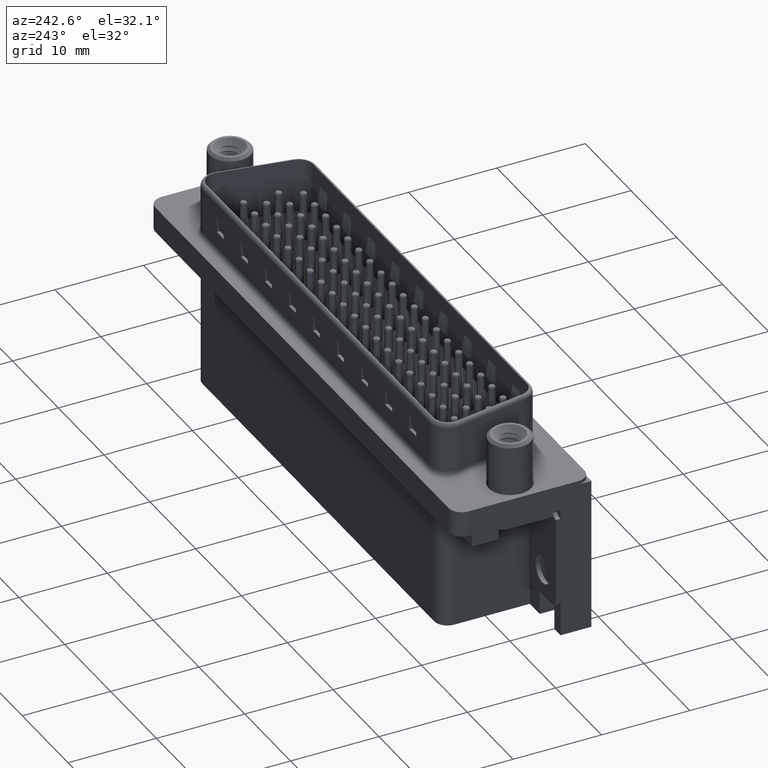
[diagram: clean part render]
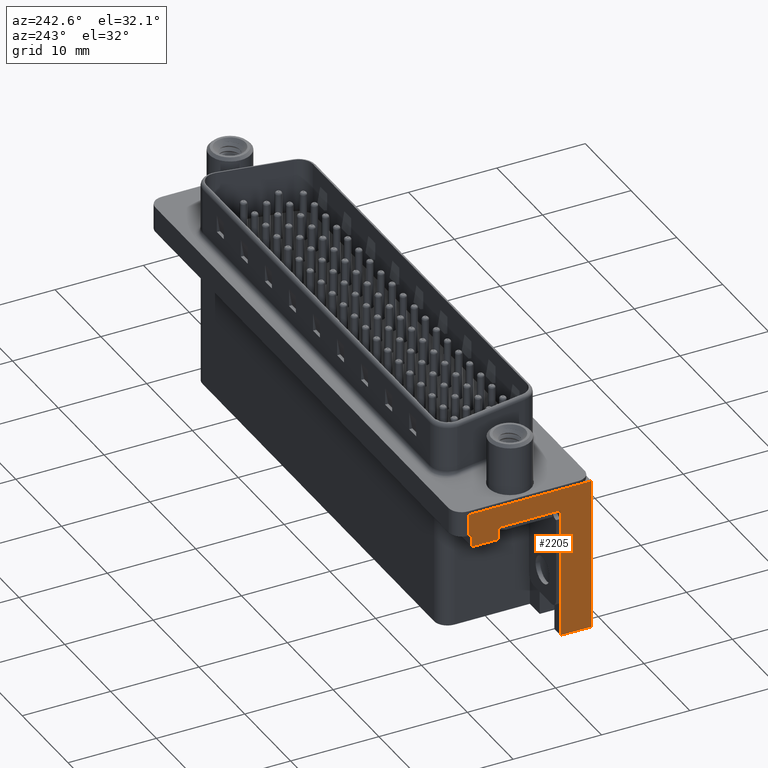
[diagram: same view with one face highlighted and labeled with its STEP entity id]
A machine part, auxiliary view. The second image highlights one B-rep face of the part: STEP entity #2205.
In plain terms, the highlighted planar face has unit normal (-1, 0, 0).
Its self-contained STEP definition (entity closure, byte-faithful):
#291 = VERTEX_POINT ( 'NONE', #10886 ) ;
#375 = ORIENTED_EDGE ( 'NONE', *, *, #37123, .F. ) ;
#747 = EDGE_CURVE ( 'NONE', #36629, #10007, #1350, .T. ) ;
#1199 = VECTOR ( 'NONE', #21009, 1000.000000000000000 ) ;
#1272 = VECTOR ( 'NONE', #30807, 1000.000000000000000 ) ;
#1350 = LINE ( 'NONE', #21792, #1199 ) ;
#1440 = LINE ( 'NONE', #8615, #2416 ) ;
#2205 = ADVANCED_FACE ( 'NONE', ( #19860 ), #10708, .T. ) ;
#2416 = VECTOR ( 'NONE', #21542, 1000.000000000000000 ) ;
#5245 = CARTESIAN_POINT ( 'NONE',  ( -2.949999999999992200, -4.199999999999999300, -17.30000000000000100 ) ) ;
#5376 = VECTOR ( 'NONE', #33175, 1000.000000000000000 ) ;
#5684 = VECTOR ( 'NONE', #31481, 1000.000000000000000 ) ;
#6172 = CARTESIAN_POINT ( 'NONE',  ( -2.949999999999998000, -7.699999999999999300, -17.30000000000000100 ) ) ;
#6846 = VECTOR ( 'NONE', #17628, 1000.000000000000000 ) ;
#7635 = ORIENTED_EDGE ( 'NONE', *, *, #18947, .T. ) ;
#8615 = CARTESIAN_POINT ( 'NONE',  ( -2.949999999999998000, -7.699999999999999300, 0.0000000000000000000 ) ) ;
#8821 = CARTESIAN_POINT ( 'NONE',  ( -2.949999999999998000, -7.699999999999999300, -2.500000000000000000 ) ) ;
#9082 = CARTESIAN_POINT ( 'NONE',  ( -2.949999999999992200, 2.849999999999993400, -2.500000000000000000 ) ) ;
#9203 = CARTESIAN_POINT ( 'NONE',  ( -2.949999999999992200, 2.849999999999993400, -3.899999999999999900 ) ) ;
#9453 = CARTESIAN_POINT ( 'NONE',  ( -2.949999999999998000, 5.849999999999993400, -2.500000000000000000 ) ) ;
#10007 = VERTEX_POINT ( 'NONE', #26752 ) ;
#10708 = PLANE ( 'NONE',  #13207 ) ;
#10886 = CARTESIAN_POINT ( 'NONE',  ( -2.949999999999992200, -4.199999999999999300, -17.30000000000000100 ) ) ;
#11127 = VECTOR ( 'NONE', #12724, 1000.000000000000000 ) ;
#11157 = EDGE_CURVE ( 'NONE', #25882, #36598, #19211, .T. ) ;
#11956 = EDGE_CURVE ( 'NONE', #25882, #18572, #35653, .T. ) ;
#12092 = DIRECTION ( 'NONE',  ( -0.0000000000000000000, -1.000000000000000000, -0.0000000000000000000 ) ) ;
#12420 = VERTEX_POINT ( 'NONE', #14635 ) ;
#12724 = DIRECTION ( 'NONE',  ( -0.0000000000000000000, 1.000000000000000000, -0.0000000000000000000 ) ) ;
#13207 = AXIS2_PLACEMENT_3D ( 'NONE', #16108, #16148, #16656 ) ;
#13543 = EDGE_CURVE ( 'NONE', #36629, #291, #33079, .T. ) ;
#14439 = ORIENTED_EDGE ( 'NONE', *, *, #36335, .T. ) ;
#14635 = CARTESIAN_POINT ( 'NONE',  ( -2.949999999999997100, 6.200000000000002800, -2.500000000000000000 ) ) ;
#15672 = EDGE_CURVE ( 'NONE', #291, #20831, #32330, .T. ) ;
#16108 = CARTESIAN_POINT ( 'NONE',  ( -2.949999999999998000, -7.699999999999999300, -2.500000000000000000 ) ) ;
#16148 = DIRECTION ( 'NONE',  ( -1.000000000000000000, 0.0000000000000000000, 0.0000000000000000000 ) ) ;
#16656 = DIRECTION ( 'NONE',  ( 0.0000000000000000000, 0.0000000000000000000, 1.000000000000000000 ) ) ;
#17088 = CARTESIAN_POINT ( 'NONE',  ( -2.949999999999998000, -7.699999999999999300, -2.500000000000000000 ) ) ;
#17628 = DIRECTION ( 'NONE',  ( 0.0000000000000000000, 0.0000000000000000000, 1.000000000000000000 ) ) ;
#17806 = EDGE_CURVE ( 'NONE', #18572, #31695, #31182, .T. ) ;
#18092 = ORIENTED_EDGE ( 'NONE', *, *, #11157, .T. ) ;
#18572 = VERTEX_POINT ( 'NONE', #38822 ) ;
#18947 = EDGE_CURVE ( 'NONE', #36598, #20831, #23642, .T. ) ;
#19211 = LINE ( 'NONE', #27619, #1272 ) ;
#19500 = EDGE_LOOP ( 'NONE', ( #375, #28597, #14439, #24136, #25560, #18092, #7635, #31452, #24146, #31700 ) ) ;
#19860 = FACE_OUTER_BOUND ( 'NONE', #19500, .T. ) ;
#20831 = VERTEX_POINT ( 'NONE', #29452 ) ;
#20847 = VECTOR ( 'NONE', #28449, 1000.000000000000000 ) ;
#21009 = DIRECTION ( 'NONE',  ( 0.0000000000000000000, 0.0000000000000000000, 1.000000000000000000 ) ) ;
#21542 = DIRECTION ( 'NONE',  ( -0.0000000000000000000, -1.000000000000000000, -0.0000000000000000000 ) ) ;
#21792 = CARTESIAN_POINT ( 'NONE',  ( -2.949999999999998000, -7.699999999999999300, -2.500000000000000000 ) ) ;
#21991 = CARTESIAN_POINT ( 'NONE',  ( -2.949999999999992200, 5.849999999999994300, -3.899999999999999900 ) ) ;
#23642 = LINE ( 'NONE', #8821, #40662 ) ;
#24117 = CARTESIAN_POINT ( 'NONE',  ( -2.949999999999997100, 6.200000000000002800, -2.500000000000000000 ) ) ;
#24136 = ORIENTED_EDGE ( 'NONE', *, *, #17806, .F. ) ;
#24146 = ORIENTED_EDGE ( 'NONE', *, *, #13543, .F. ) ;
#24605 = VECTOR ( 'NONE', #37225, 1000.000000000000000 ) ;
#25560 = ORIENTED_EDGE ( 'NONE', *, *, #11956, .F. ) ;
#25882 = VERTEX_POINT ( 'NONE', #9203 ) ;
#26752 = CARTESIAN_POINT ( 'NONE',  ( -2.949999999999998000, -7.699999999999999300, 0.0000000000000000000 ) ) ;
#27619 = CARTESIAN_POINT ( 'NONE',  ( -2.949999999999992200, 2.849999999999993400, -3.899999999999999900 ) ) ;
#28449 = DIRECTION ( 'NONE',  ( -0.0000000000000000000, -0.0000000000000000000, 1.000000000000000000 ) ) ;
#28597 = ORIENTED_EDGE ( 'NONE', *, *, #28599, .F. ) ;
#28599 = EDGE_CURVE ( 'NONE', #12420, #32305, #31357, .T. ) ;
#29452 = CARTESIAN_POINT ( 'NONE',  ( -2.949999999999998000, -4.200000000000000200, -2.500000000000000000 ) ) ;
#29912 = LINE ( 'NONE', #17088, #5376 ) ;
#30807 = DIRECTION ( 'NONE',  ( -0.0000000000000000000, -0.0000000000000000000, 1.000000000000000000 ) ) ;
#31182 = LINE ( 'NONE', #21991, #5684 ) ;
#31357 = LINE ( 'NONE', #24117, #6846 ) ;
#31452 = ORIENTED_EDGE ( 'NONE', *, *, #15672, .F. ) ;
#31481 = DIRECTION ( 'NONE',  ( -0.0000000000000000000, -0.0000000000000000000, 1.000000000000000000 ) ) ;
#31647 = CARTESIAN_POINT ( 'NONE',  ( -2.949999999999992200, -4.199999999999999300, -17.30000000000000100 ) ) ;
#31695 = VERTEX_POINT ( 'NONE', #9453 ) ;
#31700 = ORIENTED_EDGE ( 'NONE', *, *, #747, .T. ) ;
#32305 = VERTEX_POINT ( 'NONE', #38100 ) ;
#32330 = LINE ( 'NONE', #31647, #20847 ) ;
#33079 = LINE ( 'NONE', #5245, #24605 ) ;
#33175 = DIRECTION ( 'NONE',  ( -0.0000000000000000000, -1.000000000000000000, -0.0000000000000000000 ) ) ;
#35653 = LINE ( 'NONE', #41319, #11127 ) ;
#36335 = EDGE_CURVE ( 'NONE', #12420, #31695, #29912, .T. ) ;
#36598 = VERTEX_POINT ( 'NONE', #9082 ) ;
#36629 = VERTEX_POINT ( 'NONE', #6172 ) ;
#37123 = EDGE_CURVE ( 'NONE', #32305, #10007, #1440, .T. ) ;
#37225 = DIRECTION ( 'NONE',  ( 1.610814656264177800E-015, 1.000000000000000000, -0.0000000000000000000 ) ) ;
#38100 = CARTESIAN_POINT ( 'NONE',  ( -2.949999999999997100, 6.200000000000002800, 0.0000000000000000000 ) ) ;
#38822 = CARTESIAN_POINT ( 'NONE',  ( -2.949999999999992200, 5.849999999999994300, -3.899999999999999900 ) ) ;
#40662 = VECTOR ( 'NONE', #12092, 1000.000000000000000 ) ;
#41319 = CARTESIAN_POINT ( 'NONE',  ( -2.949999999999992200, 5.849999999999994300, -3.899999999999999900 ) ) ;